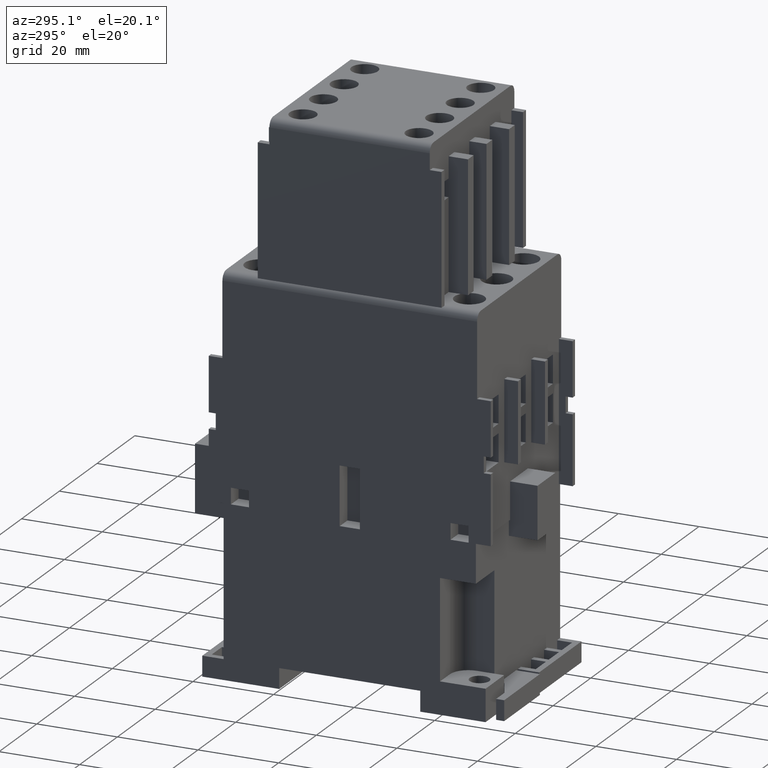
[diagram: clean part render]
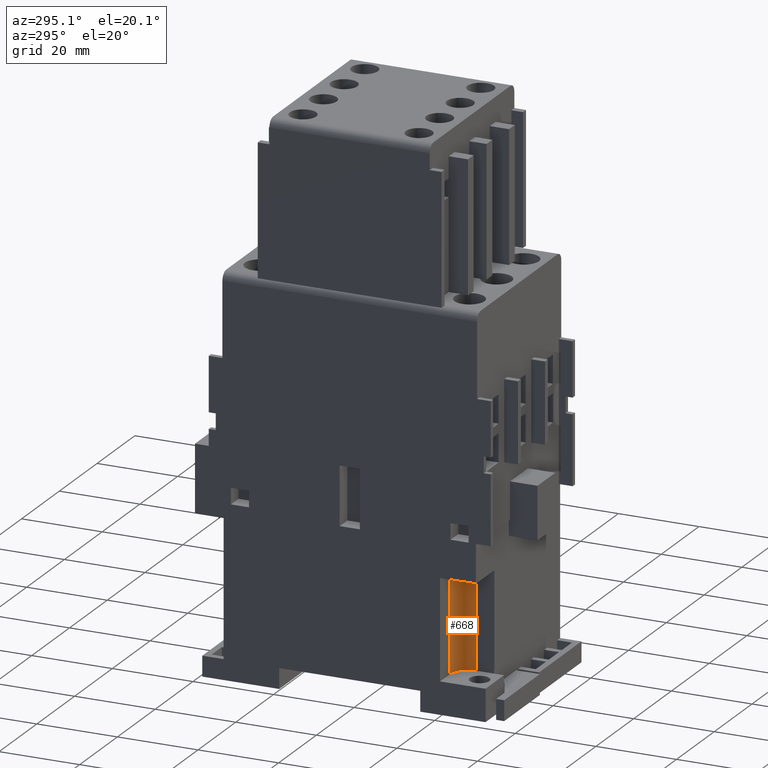
[diagram: same view with one face highlighted and labeled with its STEP entity id]
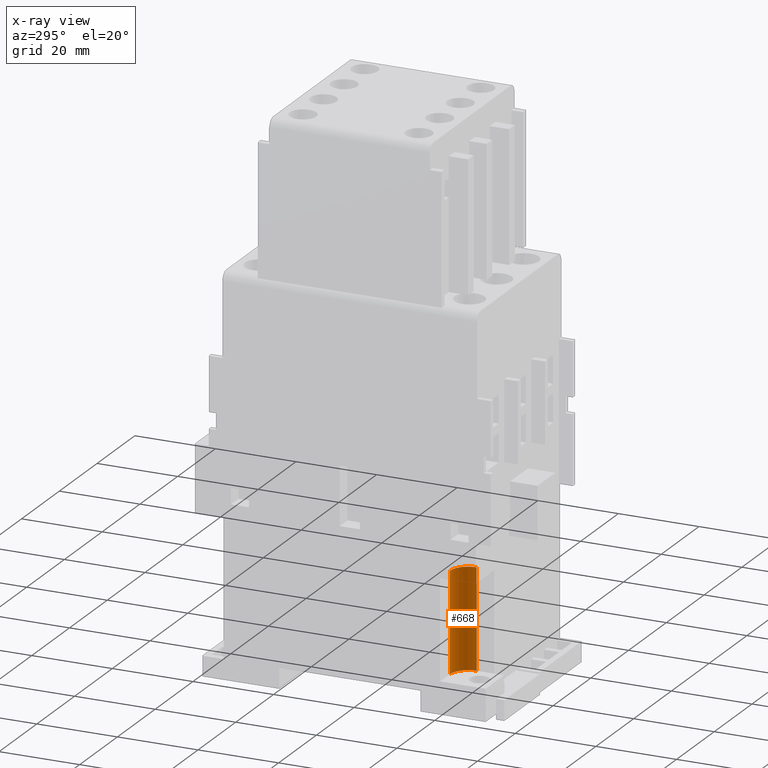
[diagram: x-ray of the same camera — body ghosted, the highlighted face saturated]
A machine part, auxiliary view. The second image highlights one B-rep face of the part: STEP entity #668.
The next image is the same camera in x-ray: the body ghosted, the highlighted face saturated — about 0% of this face is hidden behind the body in this view.
In plain terms, the highlighted cylindrical surface (edge-blend (fillet) strip) has radius 4.5 mm, axis along (0, 0, -1).
Its self-contained STEP definition (entity closure, byte-faithful):
#127=CYLINDRICAL_SURFACE('',#11886,4.5);
#668=ADVANCED_FACE('',(#1796),#127,.F.);
#1796=FACE_OUTER_BOUND('',#2420,.T.);
#2420=EDGE_LOOP('',(#4644,#4645,#4646,#4647));
#2803=CIRCLE('',#11506,4.5);
#2901=CIRCLE('',#11885,4.5);
#4644=ORIENTED_EDGE('',*,*,#7410,.T.);
#4645=ORIENTED_EDGE('',*,*,#8089,.F.);
#4646=ORIENTED_EDGE('',*,*,#8090,.F.);
#4647=ORIENTED_EDGE('',*,*,#8087,.T.);
#6337=VERTEX_POINT('',#15718);
#6338=VERTEX_POINT('',#15720);
#6766=VERTEX_POINT('',#17105);
#6767=VERTEX_POINT('',#17109);
#7410=EDGE_CURVE('',#6338,#6337,#2803,.T.);
#8087=EDGE_CURVE('',#6766,#6338,#9548,.T.);
#8089=EDGE_CURVE('',#6767,#6337,#9550,.T.);
#8090=EDGE_CURVE('',#6766,#6767,#2901,.T.);
#9548=LINE('',#17104,#10899);
#9550=LINE('',#17108,#10901);
#10899=VECTOR('',#13882,1.);
#10901=VECTOR('',#13886,1.);
#11506=AXIS2_PLACEMENT_3D('',#15719,#12547,#12548);
#11885=AXIS2_PLACEMENT_3D('',#17110,#13887,#13888);
#11886=AXIS2_PLACEMENT_3D('',#17111,#13889,#13890);
#12547=DIRECTION('',(0.,0.,-1.));
#12548=DIRECTION('',(1.,0.,0.));
#13882=DIRECTION('',(0.,0.,-1.));
#13886=DIRECTION('',(0.,0.,-1.));
#13887=DIRECTION('',(0.,0.,-1.));
#13888=DIRECTION('',(1.,0.,0.));
#13889=DIRECTION('',(0.,0.,-1.));
#13890=DIRECTION('',(-1.,0.,0.));
#15718=CARTESIAN_POINT('',(-12.5,-26.8999999999992,2.99999999999999));
#15719=CARTESIAN_POINT('',(-17.,-26.8999999999992,2.99999999999999));
#15720=CARTESIAN_POINT('',(-17.,-22.3999999999992,2.99999999999999));
#17104=CARTESIAN_POINT('',(-17.,-22.3999999999992,27.75));
#17105=CARTESIAN_POINT('',(-17.,-22.3999999999992,27.75));
#17108=CARTESIAN_POINT('',(-12.5,-26.8999999999992,27.75));
#17109=CARTESIAN_POINT('',(-12.5,-26.8999999999992,27.75));
#17110=CARTESIAN_POINT('',(-17.,-26.8999999999992,27.75));
#17111=CARTESIAN_POINT('',(-17.,-26.8999999999992,27.75));